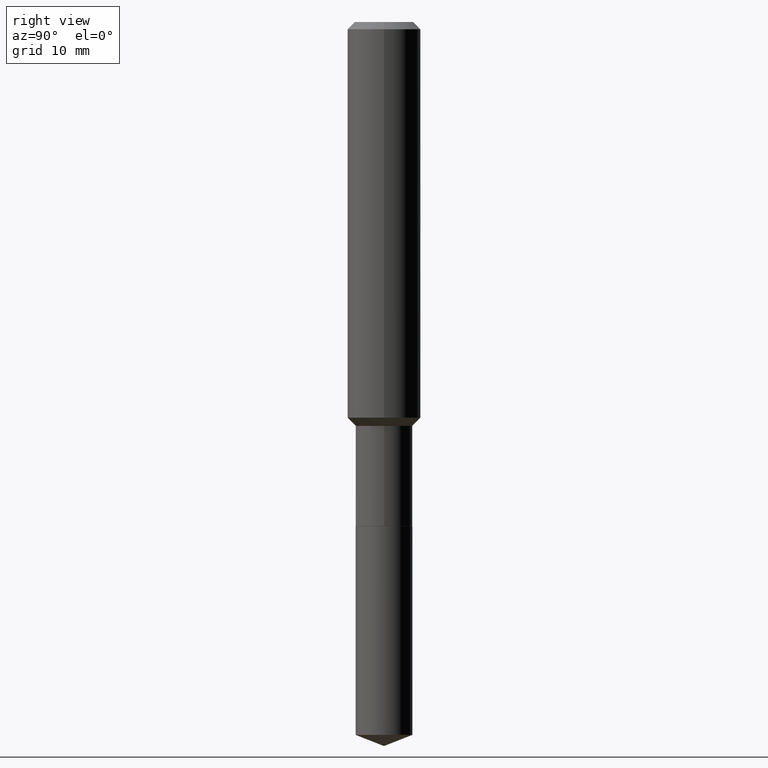
[diagram: clean part render]
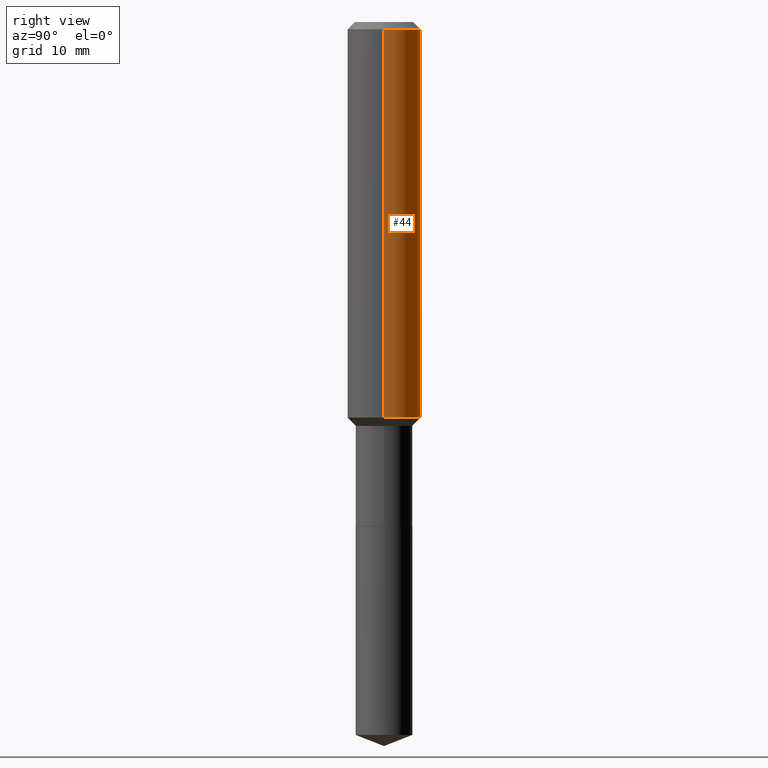
[diagram: same view with one face highlighted and labeled with its STEP entity id]
A machine part, right view. The second image highlights one B-rep face of the part: STEP entity #44.
In plain terms, the highlighted cylindrical surface (partial cylindrical patch) has radius 4.0005 mm, axis along (-0, 0, 1).
Its self-contained STEP definition (entity closure, byte-faithful):
#1 = EDGE_LOOP ( 'NONE', ( #115, #394, #313, #15 ) ) ;
#15 = ORIENTED_EDGE ( 'NONE', *, *, #71, .F. ) ;
#22 = EDGE_CURVE ( 'NONE', #347, #308, #248, .T. ) ;
#42 = VERTEX_POINT ( 'NONE', #191 ) ;
#44 = ADVANCED_FACE ( 'NONE', ( #77 ), #274, .T. ) ;
#54 = CARTESIAN_POINT ( 'NONE',  ( 0.000000000000000000, 0.000000000000000000, 0.000000000000000000 ) ) ;
#71 = EDGE_CURVE ( 'NONE', #347, #423, #468, .T. ) ;
#77 = FACE_OUTER_BOUND ( 'NONE', #1, .T. ) ;
#84 = LINE ( 'NONE', #236, #367 ) ;
#85 = CARTESIAN_POINT ( 'NONE',  ( 7.703226739483228723E-31, -1.099816621735597661E-16, -0.03150000000000019451 ) ) ;
#100 = CARTESIAN_POINT ( 'NONE',  ( -0.1575000000000001954, -4.814842300608708286E-15, -1.699550000000000116 ) ) ;
#115 = ORIENTED_EDGE ( 'NONE', *, *, #22, .T. ) ;
#119 = DIRECTION ( 'NONE',  ( -2.445468806185136597E-29, 3.491481338843145583E-15, 1.000000000000000000 ) ) ;
#127 = EDGE_CURVE ( 'NONE', #423, #42, #449, .T. ) ;
#172 = DIRECTION ( 'NONE',  ( -2.445468806185136877E-29, 3.491481338843145188E-15, 1.000000000000000000 ) ) ;
#191 = CARTESIAN_POINT ( 'NONE',  ( -0.1575000000000000011, -1.902859576980055070E-15, -0.03150000000000019451 ) ) ;
#206 = CARTESIAN_POINT ( 'NONE',  ( 0.1575000000000000844, -1.099816621735587677E-15, 7.679978421878603638E-30 ) ) ;
#210 = AXIS2_PLACEMENT_3D ( 'NONE', #54, #119, #268 ) ;
#231 = AXIS2_PLACEMENT_3D ( 'NONE', #85, #471, #395 ) ;
#236 = CARTESIAN_POINT ( 'NONE',  ( -0.1575000000000000844, 1.119104808822158392E-15, -7.747322767151481189E-30 ) ) ;
#248 = CIRCLE ( 'NONE', #412, 0.1575000000000001954 ) ;
#268 = DIRECTION ( 'NONE',  ( 1.000000000000000000, -6.982962677686267499E-15, 4.876176775795936353E-29 ) ) ;
#274 = CYLINDRICAL_SURFACE ( 'NONE', #210, 0.1575000000000000844 ) ;
#281 = DIRECTION ( 'NONE',  ( -2.445468806185136877E-29, 3.491481338843145188E-15, 1.000000000000000000 ) ) ;
#308 = VERTEX_POINT ( 'NONE', #100 ) ;
#313 = ORIENTED_EDGE ( 'NONE', *, *, #127, .F. ) ;
#331 = CARTESIAN_POINT ( 'NONE',  ( 0.1575000000000001954, -7.033763731166457314E-15, -1.699550000000000116 ) ) ;
#347 = VERTEX_POINT ( 'NONE', #331 ) ;
#349 = CARTESIAN_POINT ( 'NONE',  ( 0.1575000000000000011, -1.209798283909146741E-15, -0.03150000000000019451 ) ) ;
#360 = VECTOR ( 'NONE', #281, 39.37007874015748143 ) ;
#367 = VECTOR ( 'NONE', #172, 39.37007874015748143 ) ;
#386 = CARTESIAN_POINT ( 'NONE',  ( 4.156196509551949590E-29, -5.933947109430868256E-15, -1.699550000000000116 ) ) ;
#389 = DIRECTION ( 'NONE',  ( -2.445468806185136597E-29, 3.491481338843145583E-15, 1.000000000000000000 ) ) ;
#394 = ORIENTED_EDGE ( 'NONE', *, *, #477, .T. ) ;
#395 = DIRECTION ( 'NONE',  ( 1.000000000000000000, -6.982962677686265922E-15, 0.000000000000000000 ) ) ;
#412 = AXIS2_PLACEMENT_3D ( 'NONE', #386, #389, #457 ) ;
#423 = VERTEX_POINT ( 'NONE', #349 ) ;
#449 = CIRCLE ( 'NONE', #231, 0.1575000000000000011 ) ;
#457 = DIRECTION ( 'NONE',  ( 1.000000000000000000, -6.982962677686265922E-15, 0.000000000000000000 ) ) ;
#468 = LINE ( 'NONE', #206, #360 ) ;
#471 = DIRECTION ( 'NONE',  ( -2.445468806185136597E-29, 3.491481338843145583E-15, 1.000000000000000000 ) ) ;
#477 = EDGE_CURVE ( 'NONE', #308, #42, #84, .T. ) ;